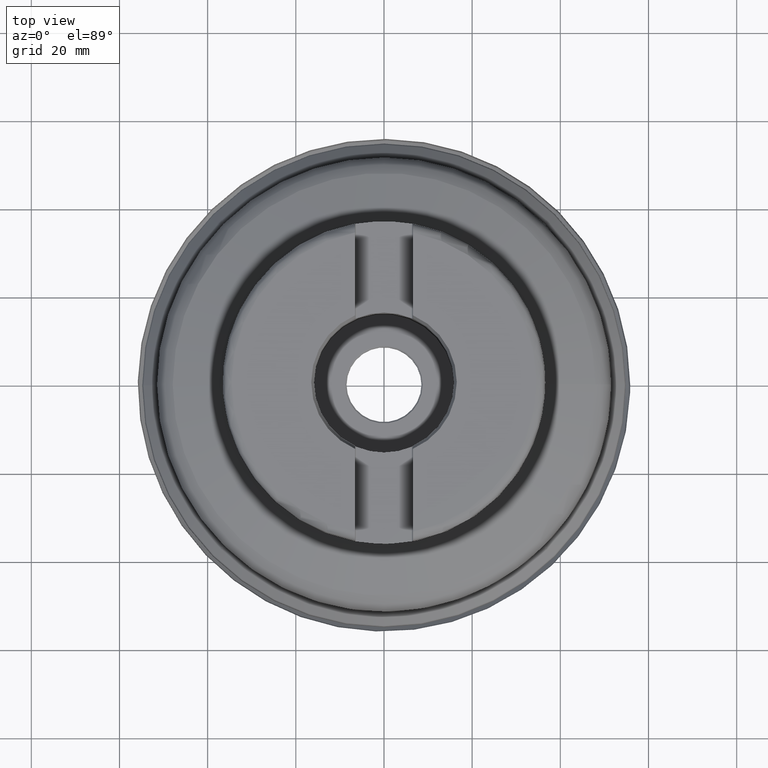
[diagram: clean part render]
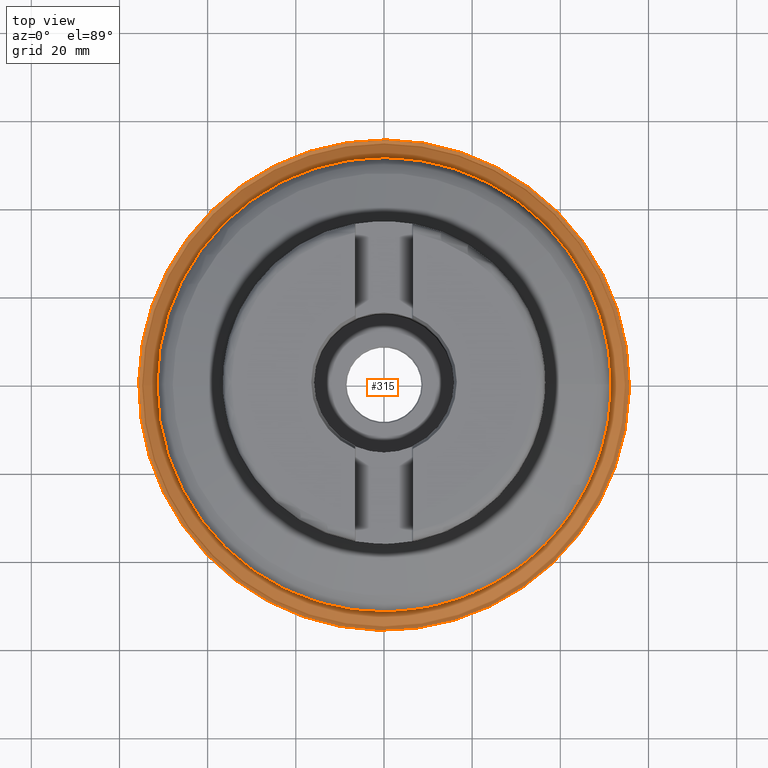
[diagram: same view with one face highlighted and labeled with its STEP entity id]
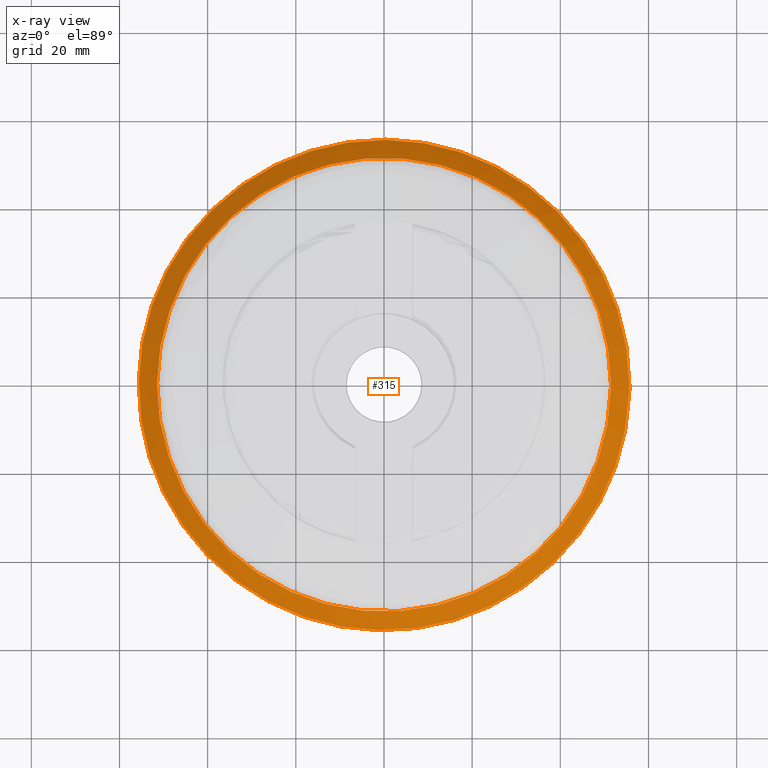
[diagram: x-ray of the same camera — body ghosted, the highlighted face saturated]
A machine part, top view. The second image highlights one B-rep face of the part: STEP entity #315.
The next image is the same camera in x-ray: the body ghosted, the highlighted face saturated — about 0% of this face is hidden behind the body in this view.
In plain terms, the highlighted face is a SurfaceOfRevolution surface.
Its self-contained STEP definition (entity closure, byte-faithful):
#127=SURFACE_OF_REVOLUTION('',#226,#149);
#149=AXIS1_PLACEMENT('',#2027,#1353);
#226=LINE('',#2026,#254);
#254=VECTOR('',#1352,5.97815706176458);
#315=ADVANCED_FACE('',(#418,#419),#127,.F.);
#418=FACE_BOUND('',#534,.T.);
#419=FACE_BOUND('',#535,.T.);
#534=EDGE_LOOP('',(#728));
#535=EDGE_LOOP('',(#729));
#728=ORIENTED_EDGE('',*,*,#917,.T.);
#729=ORIENTED_EDGE('',*,*,#918,.F.);
#820=VERTEX_POINT('',#2018);
#821=VERTEX_POINT('',#2025);
#917=EDGE_CURVE('',#820,#820,#974,.T.);
#918=EDGE_CURVE('',#821,#821,#975,.T.);
#974=CIRCLE('',#1122,51.4712199169959);
#975=CIRCLE('',#1123,55.6385948394163);
#1122=AXIS2_PLACEMENT_3D('',#2017,#1347,#1348);
#1123=AXIS2_PLACEMENT_3D('',#2024,#1350,#1351);
#1347=DIRECTION('',(1.17145536458252E-15,0.,1.));
#1348=DIRECTION('',(1.,0.,-1.17959748684993E-15));
#1350=DIRECTION('',(1.17145536458252E-15,0.,1.));
#1351=DIRECTION('',(1.,0.,-1.18477995854092E-15));
#1352=DIRECTION('',(0.0861746391405327,0.705931791107952,0.703017949893257));
#1353=DIRECTION('',(1.17145536458252E-15,0.,1.));
#2017=CARTESIAN_POINT('',(1.82323206802796E-14,0.,15.5638202116025));
#2018=CARTESIAN_POINT('',(51.4712199169959,0.,15.5638202116024));
#2024=CARTESIAN_POINT('',(1.33089845192699E-14,0.,11.3610683954765));
#2025=CARTESIAN_POINT('',(55.6385948394163,0.,11.3610683954764));
#2026=CARTESIAN_POINT('',(3.8959402393257,-55.5020258629451,11.3610684899008));
#2027=CARTESIAN_POINT('',(0.,0.,0.));